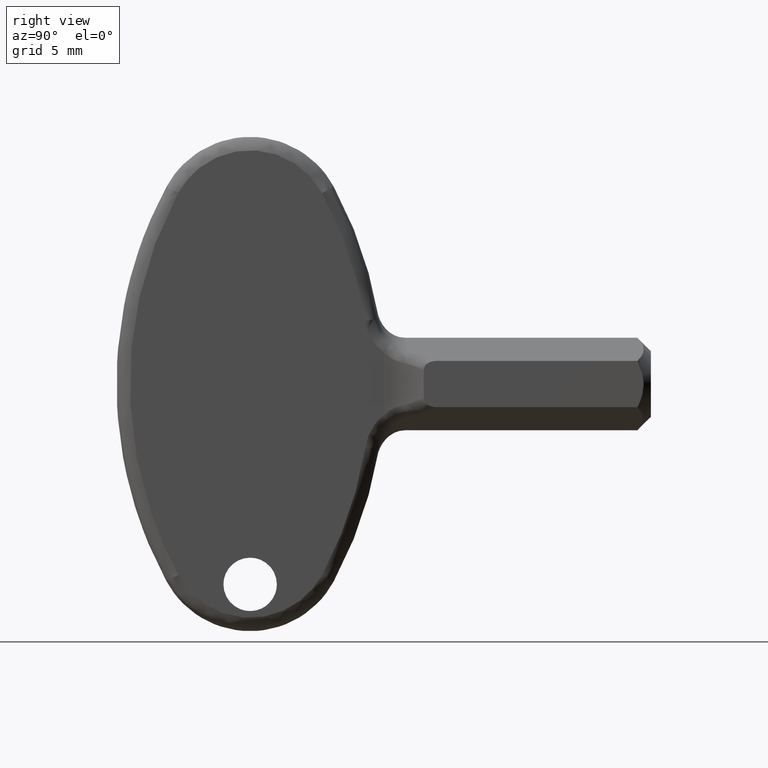
[diagram: clean part render]
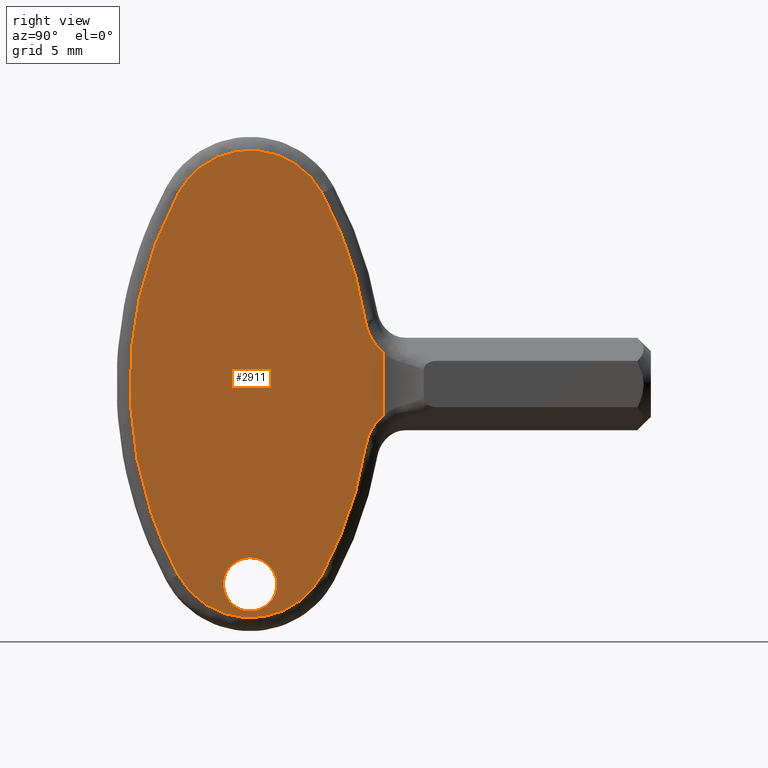
[diagram: same view with one face highlighted and labeled with its STEP entity id]
A machine part, right view. The second image highlights one B-rep face of the part: STEP entity #2911.
In plain terms, the highlighted face is a freeform B-spline surface patch.
Its self-contained STEP definition (entity closure, byte-faithful):
#70=CARTESIAN_POINT('',(2.000000000000545,-54.687695575126341,-13.708515855608850));
#71=VERTEX_POINT('',#70);
#72=CARTESIAN_POINT('',(2.0,-56.214807000000000,-13.0));
#73=VERTEX_POINT('',#72);
#74=CARTESIAN_POINT('',(2.000000000000545,-54.687695575126341,-13.708515855608850));
#75=CARTESIAN_POINT('',(2.000000000000487,-54.845352618544538,-13.521797704352300));
#76=CARTESIAN_POINT('',(2.000000000000370,-55.173224338573398,-13.254042050955810));
#77=CARTESIAN_POINT('',(2.000000000000183,-55.717073733293716,-13.041137566735509));
#78=CARTESIAN_POINT('',(2.000000000000054,-56.051904289487823,-12.999960105152290));
#79=CARTESIAN_POINT('',(2.0,-56.214807000000000,-13.0));
#80=B_SPLINE_CURVE_WITH_KNOTS('',3,(#74,#75,#76,#77,#78,#79),.UNSPECIFIED.,.F.,.U.,(4,1,1,4),(0.000000020415906,0.733064090788884,1.248911235676839,1.737616689827459),.UNSPECIFIED.);
#81=EDGE_CURVE('',#71,#73,#80,.T.);
#83=CARTESIAN_POINT('',(2.0,-58.214806999999908,-15.000000607627371));
#84=VERTEX_POINT('',#83);
#85=CARTESIAN_POINT('',(2.0,-56.214807000000000,-13.0));
#86=CARTESIAN_POINT('',(2.000000000000001,-56.443900157110008,-12.999842885765350));
#87=CARTESIAN_POINT('',(2.000000000000008,-56.828316689116747,-13.066807031471420));
#88=CARTESIAN_POINT('',(1.999999999999991,-57.263708435559082,-13.282702553210861));
#89=CARTESIAN_POINT('',(2.000000000000008,-57.590158835977597,-13.531052993277349));
#90=CARTESIAN_POINT('',(2.000000000000003,-57.826385493701679,-13.794946253597059));
#91=CARTESIAN_POINT('',(2.0,-58.037272506148391,-14.146765804215351));
#92=CARTESIAN_POINT('',(1.999999999999993,-58.178382855791639,-14.533679762597430));
#93=CARTESIAN_POINT('',(2.000000000000016,-58.214840133985447,-14.844555341706180));
#94=CARTESIAN_POINT('',(2.0,-58.214806999999908,-15.000000607627371));
#95=B_SPLINE_CURVE_WITH_KNOTS('',3,(#85,#86,#87,#88,#89,#90,#91,#92,#93,#94),.UNSPECIFIED.,.F.,.U.,(4,1,1,1,1,1,1,4),(0.000000065850570,0.687226821989109,1.153562862376283,1.448089950583968,1.914412703939772,2.208945312815667,2.675281855681589,3.141612708226567),.UNSPECIFIED.);
#96=EDGE_CURVE('',#73,#84,#95,.T.);
#98=CARTESIAN_POINT('',(2.0,-56.214807000000000,-17.0));
#99=VERTEX_POINT('',#98);
#100=CARTESIAN_POINT('',(2.0,-58.214806999999908,-15.000000607627371));
#101=CARTESIAN_POINT('',(2.000000000000002,-58.214970584717918,-15.229099378805980));
#102=CARTESIAN_POINT('',(1.999999999999998,-58.147976777188873,-15.613491566359430));
#103=CARTESIAN_POINT('',(2.000000000000001,-57.895563653174797,-16.122733530882861));
#104=CARTESIAN_POINT('',(1.999999999999996,-57.572013058095763,-16.497833396736631));
#105=CARTESIAN_POINT('',(1.999999999999992,-57.186468100666012,-16.765780113241910));
#106=CARTESIAN_POINT('',(1.999999999999999,-56.738359501288400,-16.951409529007432));
#107=CARTESIAN_POINT('',(1.999999999999977,-56.411165951199273,-17.000075322325419));
#108=CARTESIAN_POINT('',(2.0,-56.214807000000000,-17.0));
#109=B_SPLINE_CURVE_WITH_KNOTS('',3,(#100,#101,#102,#103,#104,#105,#106,#107,#108),.UNSPECIFIED.,.F.,.U.,(4,1,1,1,1,1,4),(0.000000066039957,0.687226672285147,1.153562611334840,1.693521576114824,2.159856651836715,2.552561415385530,3.141612023284573),.UNSPECIFIED.);
#110=EDGE_CURVE('',#84,#99,#109,.T.);
#112=CARTESIAN_POINT('',(1.999999999999311,-54.838097986608823,-16.450748663846639));
#113=VERTEX_POINT('',#112);
#114=CARTESIAN_POINT('',(2.0,-56.214807000000000,-17.0));
#115=CARTESIAN_POINT('',(1.999999999999905,-56.017082081222810,-17.000081505688069));
#116=CARTESIAN_POINT('',(1.999999999999749,-55.716617650211248,-16.955064599528399));
#117=CARTESIAN_POINT('',(1.999999999999516,-55.243992320652282,-16.769720289085381));
#118=CARTESIAN_POINT('',(1.999999999999383,-54.987181918071897,-16.592393345257701));
#119=CARTESIAN_POINT('',(1.999999999999311,-54.838097986608823,-16.450748663846639));
#120=B_SPLINE_CURVE_WITH_KNOTS('',3,(#114,#115,#116,#117,#118,#119),.UNSPECIFIED.,.F.,.U.,(4,1,1,4),(0.000000015169767,0.593143943580840,0.901570692385422,1.518445248347048),.UNSPECIFIED.);
#121=EDGE_CURVE('',#99,#113,#120,.T.);
#204=CARTESIAN_POINT('',(2.0,-54.214807000000093,-14.999999392372640));
#205=VERTEX_POINT('',#204);
#206=CARTESIAN_POINT('',(2.0,-54.214807000000093,-14.999999392372640));
#207=CARTESIAN_POINT('',(2.000000000000096,-54.214653327700013,-14.780600407306050));
#208=CARTESIAN_POINT('',(2.000000000000209,-54.268308186275441,-14.458956531213120));
#209=CARTESIAN_POINT('',(2.000000000000434,-54.453637832321668,-14.027706464643510));
#210=CARTESIAN_POINT('',(2.000000000000486,-54.593236657249783,-13.820171495642670));
#211=CARTESIAN_POINT('',(2.000000000000545,-54.687695575126341,-13.708515855608850));
#212=B_SPLINE_CURVE_WITH_KNOTS('',3,(#206,#207,#208,#209,#210,#211),.UNSPECIFIED.,.F.,.U.,(4,1,1,4),(0.000000011571892,0.658125026002708,0.965245015234849,1.403995852701120),.UNSPECIFIED.);
#213=EDGE_CURVE('',#205,#71,#212,.T.);
#236=CARTESIAN_POINT('',(1.999999999999311,-54.838097986608823,-16.450748663846639));
#237=CARTESIAN_POINT('',(1.999999999999355,-54.733833097658497,-16.351835402300711));
#238=CARTESIAN_POINT('',(1.999999999999468,-54.546772476731320,-16.131402648897652));
#239=CARTESIAN_POINT('',(1.999999999999626,-54.363301416077370,-15.785961008569410));
#240=CARTESIAN_POINT('',(1.999999999999802,-54.243901938953222,-15.405777629226840));
#241=CARTESIAN_POINT('',(1.999999999999938,-54.214774758321163,-15.152173623959291));
#242=CARTESIAN_POINT('',(2.0,-54.214807000000093,-14.999999392372640));
#243=B_SPLINE_CURVE_WITH_KNOTS('',3,(#236,#237,#238,#239,#240,#241,#242),.UNSPECIFIED.,.F.,.U.,(4,1,1,1,4),(0.000000018734986,0.431154283952342,0.862301680567050,1.166650633319946,1.623167671574971),.UNSPECIFIED.);
#244=EDGE_CURVE('',#113,#205,#243,.T.);
#1587=CARTESIAN_POINT('',(2.0,-47.588481033140702,-4.724404154808280));
#1588=VERTEX_POINT('',#1587);
#1624=CARTESIAN_POINT('',(2.0,-46.214806999999993,-2.334621113374345));
#1625=VERTEX_POINT('',#1624);
#1636=CARTESIAN_POINT('',(2.0,-47.588481033140702,-4.724404154808280));
#1637=CARTESIAN_POINT('',(2.0,-47.569861899857173,-4.607446312927318));
#1638=CARTESIAN_POINT('',(2.0,-47.546181725779199,-4.491586530663295));
#1639=CARTESIAN_POINT('',(2.0,-47.503058484410907,-4.319446424208415));
#1640=CARTESIAN_POINT('',(2.0,-47.487389686115677,-4.262267318174285));
#1641=CARTESIAN_POINT('',(2.0,-47.453674016528758,-4.149082612483232));
#1642=CARTESIAN_POINT('',(2.0,-47.435617653875433,-4.093024555204756));
#1643=CARTESIAN_POINT('',(2.0,-47.339383487210981,-3.815387787466838));
#1644=CARTESIAN_POINT('',(2.0,-47.243543572365937,-3.601682725872354));
#1645=CARTESIAN_POINT('',(2.0,-47.098911030970747,-3.345621624364159));
#1646=CARTESIAN_POINT('',(2.0,-47.068730307995033,-3.294968524442634));
#1647=CARTESIAN_POINT('',(2.0,-47.005773922456832,-3.194819131015508));
#1648=CARTESIAN_POINT('',(2.0,-46.973034150946603,-3.145395875883377));
#1649=CARTESIAN_POINT('',(2.0,-46.871865228713951,-3.000402273196855));
#1650=CARTESIAN_POINT('',(2.0,-46.800192670289363,-2.907607727601799));
#1651=CARTESIAN_POINT('',(2.0,-46.572275180724063,-2.641028970721289));
#1652=CARTESIAN_POINT('',(2.0,-46.403328417273869,-2.478868462040516));
#1653=CARTESIAN_POINT('',(2.0,-46.214806999999993,-2.334621113374305));
#1654=B_SPLINE_CURVE_WITH_KNOTS('',3,(#1636,#1637,#1638,#1639,#1640,#1641,#1642,#1643,#1644,#1645,#1646,#1647,#1648,#1649,#1650,#1651,#1652,#1653),.UNSPECIFIED.,.F.,.U.,(4,2,2,2,2,2,2,2,4),(0.0,0.125000000000004,0.187500000000006,0.250000000000008,0.500000000000011,0.562500000000010,0.625000000000008,0.750000000000005,1.0),.UNSPECIFIED.);
#1655=EDGE_CURVE('',#1588,#1625,#1654,.T.);
#1781=CARTESIAN_POINT('',(2.0,-50.829547461018599,-14.289291123879160));
#1782=VERTEX_POINT('',#1781);
#1807=CARTESIAN_POINT('',(2.0,-50.829547461018599,-14.289291123879160));
#1808=CARTESIAN_POINT('',(2.000000000000002,-50.276639270688463,-13.266463829143570));
#1809=CARTESIAN_POINT('',(1.999999999999999,-49.424374724576332,-11.444231078498380));
#1810=CARTESIAN_POINT('',(2.0,-48.304114498883372,-8.249528304633536));
#1811=CARTESIAN_POINT('',(2.0,-47.804452580142083,-6.081433785334997));
#1812=CARTESIAN_POINT('',(2.0,-47.588481033140702,-4.724404154808280));
#1813=B_SPLINE_CURVE_WITH_KNOTS('',3,(#1807,#1808,#1809,#1810,#1811,#1812),.UNSPECIFIED.,.F.,.U.,(4,1,1,4),(3.165592E-010,3.488115430045304,6.024922181276704,10.147240397929730),.UNSPECIFIED.);
#1814=EDGE_CURVE('',#1782,#1588,#1813,.T.);
#1927=CARTESIAN_POINT('',(2.0,-61.600066538873598,-14.289291123616460));
#1928=VERTEX_POINT('',#1927);
#1964=CARTESIAN_POINT('',(2.0,-61.600066538873598,-14.289291123616460));
#1965=CARTESIAN_POINT('',(2.0,-61.371935719134697,-14.711573296286410));
#1966=CARTESIAN_POINT('',(2.0,-60.835441384356812,-15.473729210668290));
#1967=CARTESIAN_POINT('',(2.000000000000007,-59.936680378262238,-16.279472209360922));
#1968=CARTESIAN_POINT('',(1.999999999999992,-59.060213833426857,-16.822077002170239));
#1969=CARTESIAN_POINT('',(2.0,-58.209475432439888,-17.193511220004179));
#1970=CARTESIAN_POINT('',(1.999999999999985,-57.359882214997263,-17.412249903392741));
#1971=CARTESIAN_POINT('',(2.000000000000003,-56.370592504523508,-17.524959494855100));
#1972=CARTESIAN_POINT('',(2.000000000000008,-55.406430615298653,-17.480381496768000));
#1973=CARTESIAN_POINT('',(1.999999999999971,-54.317667960558232,-17.229081718002369));
#1974=CARTESIAN_POINT('',(2.000000000000065,-53.268872531091027,-16.792120222860131));
#1975=CARTESIAN_POINT('',(1.999999999999978,-52.327282721600703,-16.152846940158771));
#1976=CARTESIAN_POINT('',(2.0,-51.472891225238641,-15.305467719625909));
#1977=CARTESIAN_POINT('',(2.000000000000003,-51.041399864736221,-14.681395968265530));
#1978=CARTESIAN_POINT('',(2.0,-50.829547461018599,-14.289291123879160));
#1979=B_SPLINE_CURVE_WITH_KNOTS('',3,(#1964,#1965,#1966,#1967,#1968,#1969,#1970,#1971,#1972,#1973,#1974,#1975,#1976,#1977,#1978),.UNSPECIFIED.,.F.,.U.,(4,1,1,1,1,1,1,1,1,1,1,1,4),(0.000000067243356,1.439867852023330,2.776913397834061,3.599703383315140,4.525352021658096,5.553847102201186,6.222355322399704,7.507942534117152,8.433575283474148,9.564920780646098,10.901959970862460,11.827612151777320,13.164626183008879),.UNSPECIFIED.);
#1980=EDGE_CURVE('',#1928,#1782,#1979,.T.);
#2002=CARTESIAN_POINT('',(2.0,-61.600032597635298,14.289303915758859));
#2003=VERTEX_POINT('',#2002);
#2033=CARTESIAN_POINT('',(2.0,-61.600032597635298,14.289303915758859));
#2034=CARTESIAN_POINT('',(2.000000000000006,-62.430006923935473,12.754218002979020));
#2035=CARTESIAN_POINT('',(1.999999999999987,-63.419229254169259,10.467740237421850));
#2036=CARTESIAN_POINT('',(2.0,-64.465039950958896,6.892186083062683));
#2037=CARTESIAN_POINT('',(2.000000000000016,-65.039363850000356,3.837389678837643));
#2038=CARTESIAN_POINT('',(1.999999999999971,-65.260209592360326,0.582258035510939));
#2039=CARTESIAN_POINT('',(2.000000000000024,-65.156766042575370,-2.560293435731856));
#2040=CARTESIAN_POINT('',(1.999999999999979,-64.753331409096901,-5.562877811217377));
#2041=CARTESIAN_POINT('',(2.000000000000005,-64.079471695848312,-8.316105290447327));
#2042=CARTESIAN_POINT('',(1.999999999999965,-63.100060123266353,-11.220877050507870));
#2043=CARTESIAN_POINT('',(2.000000000000074,-62.245527081535421,-13.095305290683820));
#2044=CARTESIAN_POINT('',(2.0,-61.600066538873598,-14.289291123616460));
#2045=B_SPLINE_CURVE_WITH_KNOTS('',3,(#2033,#2034,#2035,#2036,#2037,#2038,#2039,#2040,#2041,#2042,#2043,#2044),.UNSPECIFIED.,.F.,.U.,(4,1,1,1,1,1,1,1,1,4),(7.613949E-009,5.235231122214245,7.445667200749139,11.168507390318840,14.542323883033131,17.218104870495690,20.591921837436519,23.616726594571659,25.710825864339061,29.782668685849330),.UNSPECIFIED.);
#2046=EDGE_CURVE('',#2003,#1928,#2045,.T.);
#2074=CARTESIAN_POINT('',(2.0,-50.829581402359103,14.289303915726959));
#2075=VERTEX_POINT('',#2074);
#2109=CARTESIAN_POINT('',(2.0,-50.829581402359103,14.289303915726959));
#2110=CARTESIAN_POINT('',(2.000000000000002,-51.082125645174663,14.756848068656740));
#2111=CARTESIAN_POINT('',(1.999999999999996,-51.598703413930529,15.471269001512450));
#2112=CARTESIAN_POINT('',(2.000000000000001,-52.418515786206243,16.206073644454730));
#2113=CARTESIAN_POINT('',(1.999999999999995,-53.159169551414557,16.704385154147712));
#2114=CARTESIAN_POINT('',(1.999999999999999,-53.914996453484783,17.076812852913850));
#2115=CARTESIAN_POINT('',(2.000000000000010,-54.848863186136043,17.372485905562719));
#2116=CARTESIAN_POINT('',(1.999999999999987,-55.768061500767502,17.508584396235079));
#2117=CARTESIAN_POINT('',(2.000000000000003,-56.764466161506363,17.500223416653231));
#2118=CARTESIAN_POINT('',(2.0,-57.681252824503460,17.348688009857661));
#2119=CARTESIAN_POINT('',(2.000000000000008,-58.675209257807403,17.015538246967051));
#2120=CARTESIAN_POINT('',(1.999999999999945,-59.662171615503588,16.487368976333681));
#2121=CARTESIAN_POINT('',(2.000000000000165,-60.497523779447157,15.793608880938130));
#2122=CARTESIAN_POINT('',(1.999999999999597,-61.146634145414453,15.037953179317050));
#2123=CARTESIAN_POINT('',(2.000000000000612,-61.453334195712692,14.560739745285280));
#2124=CARTESIAN_POINT('',(2.0,-61.600032597635298,14.289303915758859));
#2125=B_SPLINE_CURVE_WITH_KNOTS('',3,(#2109,#2110,#2111,#2112,#2113,#2114,#2115,#2116,#2117,#2118,#2119,#2120,#2121,#2122,#2123,#2124),.UNSPECIFIED.,.F.,.U.,(4,1,1,1,1,1,1,1,1,1,1,1,1,4),(0.000000067004443,1.594129136363454,2.622620559769556,3.291133302575256,4.268190076156602,5.142405290127877,6.222310348297381,7.045056105575686,8.124970869692845,8.999189179535087,10.181944934039350,11.467554469653679,12.238908313295671,13.164531031892620),.UNSPECIFIED.);
#2126=EDGE_CURVE('',#2075,#2003,#2125,.T.);
#2148=CARTESIAN_POINT('',(2.0,-47.588488270426303,4.724399616275710));
#2149=VERTEX_POINT('',#2148);
#2173=CARTESIAN_POINT('',(2.0,-47.588488270426303,4.724399616275710));
#2174=CARTESIAN_POINT('',(2.000000000000003,-47.779554708100036,5.924848462548356));
#2175=CARTESIAN_POINT('',(1.999999999999991,-48.227330820720852,7.940669184165147));
#2176=CARTESIAN_POINT('',(2.000000000000015,-49.296878629049338,11.152713618675801));
#2177=CARTESIAN_POINT('',(1.999999999999989,-50.201252782130773,13.127007067224280));
#2178=CARTESIAN_POINT('',(2.0,-50.829581402359103,14.289303915726959));
#2179=B_SPLINE_CURVE_WITH_KNOTS('',3,(#2173,#2174,#2175,#2176,#2177,#2178),.UNSPECIFIED.,.F.,.U.,(4,1,1,4),(3.176428E-010,3.646675316650183,6.183488233718673,10.147265742139711),.UNSPECIFIED.);
#2180=EDGE_CURVE('',#2149,#2075,#2179,.T.);
#2253=CARTESIAN_POINT('',(2.0,-46.214806999999993,2.334615808759155));
#2254=VERTEX_POINT('',#2253);
#2284=CARTESIAN_POINT('',(2.0,-46.214806999999993,2.334615808759160));
#2285=CARTESIAN_POINT('',(2.0,-46.404257087795131,2.479572857297563));
#2286=CARTESIAN_POINT('',(2.0,-46.573652372240787,2.642386501362150));
#2287=CARTESIAN_POINT('',(2.0,-46.801850833336083,2.909663139591456));
#2288=CARTESIAN_POINT('',(2.0,-46.873549092201102,3.002644482034917));
#2289=CARTESIAN_POINT('',(2.0,-46.974680903439662,3.147828861092703));
#2290=CARTESIAN_POINT('',(2.0,-47.007319955454662,3.197177753013659));
#2291=CARTESIAN_POINT('',(2.0,-47.070450747242063,3.297787482114562));
#2292=CARTESIAN_POINT('',(2.0,-47.100895531882138,3.348992248632676));
#2293=CARTESIAN_POINT('',(2.0,-47.246066800478332,3.606679637824847));
#2294=CARTESIAN_POINT('',(2.0,-47.341376258581192,3.820431975069591));
#2295=CARTESIAN_POINT('',(2.0,-47.493900050105040,4.261842042560433));
#2296=CARTESIAN_POINT('',(2.0,-47.551094137814992,4.489507162848463));
#2297=CARTESIAN_POINT('',(2.0,-47.588488270426303,4.724399616275710));
#2298=B_SPLINE_CURVE_WITH_KNOTS('',3,(#2284,#2285,#2286,#2287,#2288,#2289,#2290,#2291,#2292,#2293,#2294,#2295,#2296,#2297),.UNSPECIFIED.,.F.,.U.,(4,2,2,2,2,2,4),(0.0,0.250000000000005,0.375000000000004,0.437500000000004,0.500000000000004,0.750000000000002,1.0),.UNSPECIFIED.);
#2299=EDGE_CURVE('',#2254,#2149,#2298,.T.);
#2827=CARTESIAN_POINT('',(2.0,-46.214806999999993,-2.334621113374345));
#2828=CARTESIAN_POINT('',(2.0,-46.214806999999993,2.334615808759155));
#2829=QUASI_UNIFORM_CURVE('',1,(#2827,#2828),.UNSPECIFIED.,.F.,.U.);
#2830=EDGE_CURVE('',#1625,#2254,#2829,.T.);
#2888=CARTESIAN_POINT('',(2.0,-66.163887599776501,19.248264048488771));
#2889=CARTESIAN_POINT('',(2.0,-45.265753646069513,19.248264048488771));
#2890=CARTESIAN_POINT('',(2.0,-66.163887599776501,-19.248250746949509));
#2891=CARTESIAN_POINT('',(2.0,-45.265753646069513,-19.248250746949509));
#2892=B_SPLINE_SURFACE_WITH_KNOTS('',1,1,((#2888,#2890),(#2889,#2891)),.UNSPECIFIED.,.F.,.F.,.U.,(2,2),(2,2),(0.0,20.898133953706999),(0.0,38.496514795438280),.UNSPECIFIED.);
#2893=ORIENTED_EDGE('',*,*,#1814,.T.);
#2894=ORIENTED_EDGE('',*,*,#1655,.T.);
#2895=ORIENTED_EDGE('',*,*,#2830,.T.);
#2896=ORIENTED_EDGE('',*,*,#2299,.T.);
#2897=ORIENTED_EDGE('',*,*,#2180,.T.);
#2898=ORIENTED_EDGE('',*,*,#2126,.T.);
#2899=ORIENTED_EDGE('',*,*,#2046,.T.);
#2900=ORIENTED_EDGE('',*,*,#1980,.T.);
#2901=EDGE_LOOP('',(#2893,#2894,#2895,#2896,#2897,#2898,#2899,#2900));
#2902=FACE_OUTER_BOUND('',#2901,.T.);
#2903=ORIENTED_EDGE('',*,*,#96,.F.);
#2904=ORIENTED_EDGE('',*,*,#81,.F.);
#2905=ORIENTED_EDGE('',*,*,#213,.F.);
#2906=ORIENTED_EDGE('',*,*,#244,.F.);
#2907=ORIENTED_EDGE('',*,*,#121,.F.);
#2908=ORIENTED_EDGE('',*,*,#110,.F.);
#2909=EDGE_LOOP('',(#2903,#2904,#2905,#2906,#2907,#2908));
#2910=FACE_BOUND('',#2909,.T.);
#2911=ADVANCED_FACE('',(#2902,#2910),#2892,.F.);